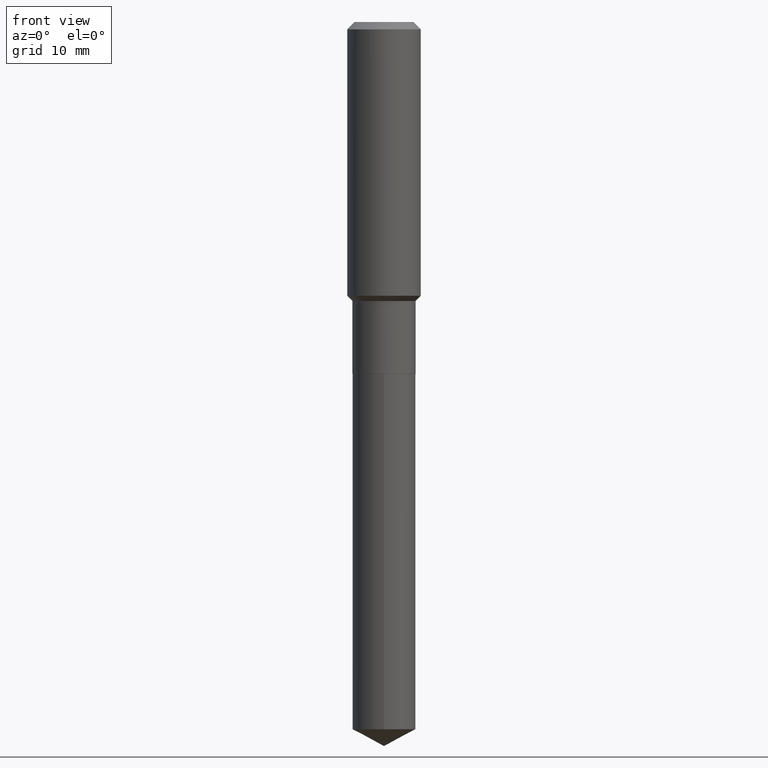
[diagram: clean part render]
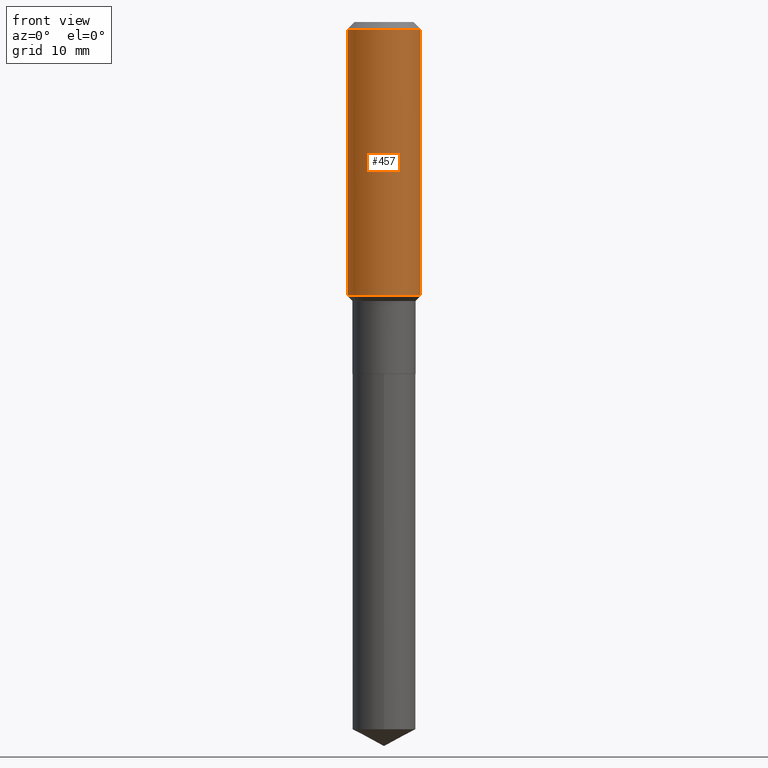
[diagram: same view with one face highlighted and labeled with its STEP entity id]
A machine part, front view. The second image highlights one B-rep face of the part: STEP entity #457.
In plain terms, the highlighted cylindrical surface (partial cylindrical patch) has radius 5.9995 mm, axis along (-0, 0, 1).
Its self-contained STEP definition (entity closure, byte-faithful):
#4 = VECTOR ( 'NONE', #411, 39.37007874015748143 ) ;
#12 = VERTEX_POINT ( 'NONE', #103 ) ;
#47 = ORIENTED_EDGE ( 'NONE', *, *, #59, .T. ) ;
#57 = AXIS2_PLACEMENT_3D ( 'NONE', #212, #169, #286 ) ;
#59 = EDGE_CURVE ( 'NONE', #12, #89, #290, .T. ) ;
#70 = VERTEX_POINT ( 'NONE', #85 ) ;
#85 = CARTESIAN_POINT ( 'NONE',  ( 0.2361999999999999933, -1.814313362916447440E-15, -0.04724000000000026789 ) ) ;
#89 = VERTEX_POINT ( 'NONE', #306 ) ;
#102 = CYLINDRICAL_SURFACE ( 'NONE', #57, 0.2362000000000001321 ) ;
#103 = CARTESIAN_POINT ( 'NONE',  ( -0.2362000000000002431, -4.456230770482048538E-15, -1.756999999999999895 ) ) ;
#113 = CARTESIAN_POINT ( 'NONE',  ( 4.296688692467284902E-29, -6.134532712347405721E-15, -1.756999999999999895 ) ) ;
#136 = FACE_OUTER_BOUND ( 'NONE', #469, .T. ) ;
#145 = AXIS2_PLACEMENT_3D ( 'NONE', #486, #195, #490 ) ;
#169 = DIRECTION ( 'NONE',  ( -2.445468806185136597E-29, 3.491481338843145583E-15, 1.000000000000000000 ) ) ;
#184 = ORIENTED_EDGE ( 'NONE', *, *, #211, .T. ) ;
#186 = ORIENTED_EDGE ( 'NONE', *, *, #488, .F. ) ;
#195 = DIRECTION ( 'NONE',  ( -2.445468806185136597E-29, 3.491481338843145583E-15, 1.000000000000000000 ) ) ;
#196 = EDGE_CURVE ( 'NONE', #248, #70, #433, .T. ) ;
#211 = EDGE_CURVE ( 'NONE', #89, #70, #416, .T. ) ;
#212 = CARTESIAN_POINT ( 'NONE',  ( 0.000000000000000000, 0.000000000000000000, 0.000000000000000000 ) ) ;
#218 = DIRECTION ( 'NONE',  ( 1.000000000000000000, -6.982962677686265922E-15, 0.000000000000000000 ) ) ;
#248 = VERTEX_POINT ( 'NONE', #323 ) ;
#264 = CARTESIAN_POINT ( 'NONE',  ( 0.2362000000000001321, -1.649375784469497117E-15, 1.151752954443000789E-29 ) ) ;
#286 = DIRECTION ( 'NONE',  ( 1.000000000000000000, -6.982962677686266711E-15, 4.876176775795936353E-29 ) ) ;
#290 = CIRCLE ( 'NONE', #335, 0.2362000000000002431 ) ;
#306 = CARTESIAN_POINT ( 'NONE',  ( 0.2362000000000002431, -7.783908496816903035E-15, -1.756999999999999895 ) ) ;
#323 = CARTESIAN_POINT ( 'NONE',  ( -0.2361999999999999933, -1.471433203531820740E-15, -0.04724000000000026789 ) ) ;
#335 = AXIS2_PLACEMENT_3D ( 'NONE', #113, #398, #218 ) ;
#396 = VECTOR ( 'NONE', #399, 39.37007874015748143 ) ;
#398 = DIRECTION ( 'NONE',  ( -2.445468806185136597E-29, 3.491481338843145583E-15, 1.000000000000000000 ) ) ;
#399 = DIRECTION ( 'NONE',  ( -2.445468806185136877E-29, 3.491481338843145188E-15, 1.000000000000000000 ) ) ;
#411 = DIRECTION ( 'NONE',  ( -2.445468806185136877E-29, 3.491481338843145188E-15, 1.000000000000000000 ) ) ;
#416 = LINE ( 'NONE', #264, #4 ) ;
#428 = LINE ( 'NONE', #471, #396 ) ;
#433 = CIRCLE ( 'NONE', #145, 0.2361999999999999933 ) ;
#448 = ORIENTED_EDGE ( 'NONE', *, *, #196, .F. ) ;
#457 = ADVANCED_FACE ( 'NONE', ( #136 ), #102, .T. ) ;
#469 = EDGE_LOOP ( 'NONE', ( #186, #47, #184, #448 ) ) ;
#471 = CARTESIAN_POINT ( 'NONE',  ( -0.2362000000000001321, 1.678301941865357577E-15, -1.161852468318209457E-29 ) ) ;
#486 = CARTESIAN_POINT ( 'NONE',  ( 1.155239464041864981E-30, -1.649375784469511119E-16, -0.04724000000000026789 ) ) ;
#488 = EDGE_CURVE ( 'NONE', #12, #248, #428, .T. ) ;
#490 = DIRECTION ( 'NONE',  ( 1.000000000000000000, -6.982962677686266711E-15, 0.000000000000000000 ) ) ;